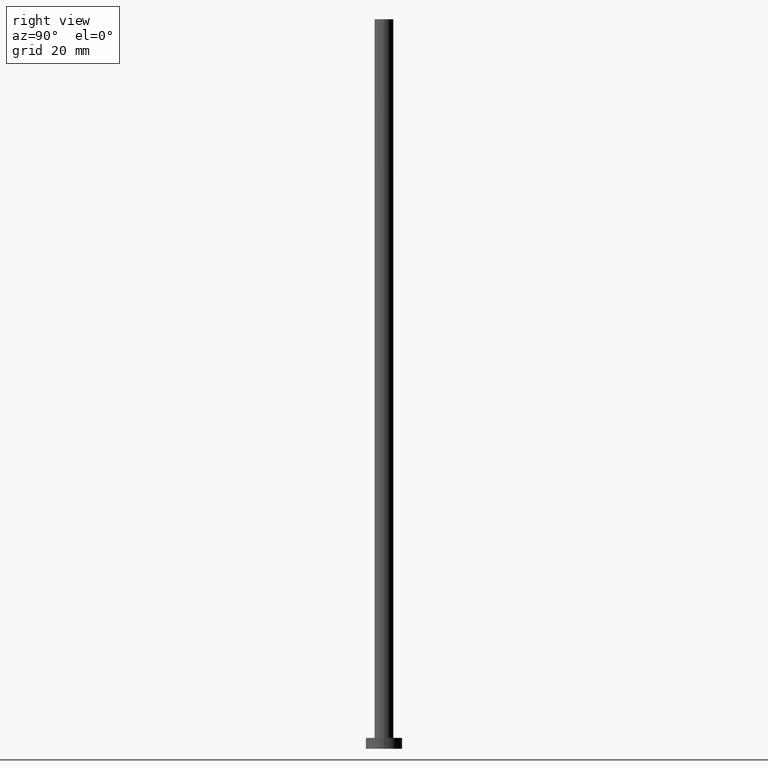
[diagram: clean part render]
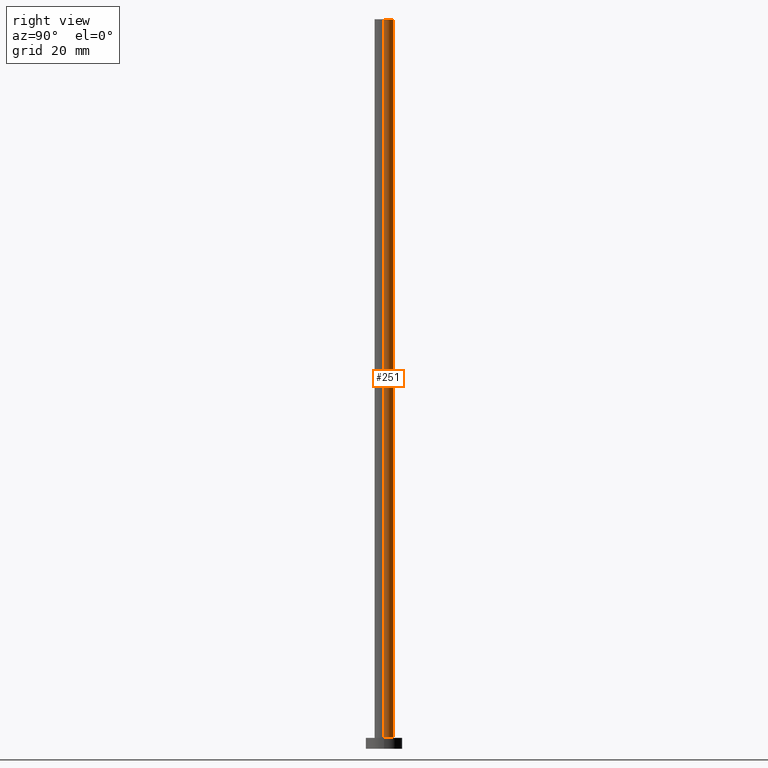
[diagram: same view with one face highlighted and labeled with its STEP entity id]
A machine part, right view. The second image highlights one B-rep face of the part: STEP entity #251.
In plain terms, the highlighted cylindrical surface (edge-blend (fillet) strip) has radius 2.6 mm, axis along (-0, -0, -1).
Its self-contained STEP definition (entity closure, byte-faithful):
#6 = VECTOR ( 'NONE', #127, 1000.000000000000000 ) ;
#7 = CARTESIAN_POINT ( 'NONE',  ( 0.000000000000000000, 0.000000000000000000, 200.0000000000000000 ) ) ;
#8 = DIRECTION ( 'NONE',  ( -0.000000000000000000, -0.000000000000000000, -1.000000000000000000 ) ) ;
#21 = VERTEX_POINT ( 'NONE', #204 ) ;
#25 = FACE_OUTER_BOUND ( 'NONE', #80, .T. ) ;
#30 = VERTEX_POINT ( 'NONE', #155 ) ;
#46 = CARTESIAN_POINT ( 'NONE',  ( 0.000000000000000000, 0.000000000000000000, 3.000000000000000000 ) ) ;
#57 = EDGE_CURVE ( 'NONE', #21, #30, #226, .T. ) ;
#63 = DIRECTION ( 'NONE',  ( -0.000000000000000000, -0.000000000000000000, -1.000000000000000000 ) ) ;
#65 = CYLINDRICAL_SURFACE ( 'NONE', #160, 2.600000000000000089 ) ;
#67 = CARTESIAN_POINT ( 'NONE',  ( 2.600000000000000089, 3.184081677783118191E-16, 3.000000000000000000 ) ) ;
#80 = EDGE_LOOP ( 'NONE', ( #118, #200, #120, #220 ) ) ;
#83 = LINE ( 'NONE', #229, #6 ) ;
#99 = VECTOR ( 'NONE', #63, 1000.000000000000000 ) ;
#104 = VERTEX_POINT ( 'NONE', #135 ) ;
#109 = DIRECTION ( 'NONE',  ( 0.000000000000000000, 0.000000000000000000, 1.000000000000000000 ) ) ;
#118 = ORIENTED_EDGE ( 'NONE', *, *, #57, .F. ) ;
#120 = ORIENTED_EDGE ( 'NONE', *, *, #198, .T. ) ;
#125 = DIRECTION ( 'NONE',  ( 1.000000000000000000, 0.000000000000000000, 0.000000000000000000 ) ) ;
#127 = DIRECTION ( 'NONE',  ( -0.000000000000000000, -0.000000000000000000, -1.000000000000000000 ) ) ;
#130 = AXIS2_PLACEMENT_3D ( 'NONE', #254, #240, #203 ) ;
#135 = CARTESIAN_POINT ( 'NONE',  ( -2.600000000000000089, 0.000000000000000000, 3.000000000000000000 ) ) ;
#155 = CARTESIAN_POINT ( 'NONE',  ( -2.600000000000000089, 0.000000000000000000, 200.0000000000000000 ) ) ;
#160 = AXIS2_PLACEMENT_3D ( 'NONE', #7, #8, #207 ) ;
#165 = LINE ( 'NONE', #188, #99 ) ;
#169 = EDGE_CURVE ( 'NONE', #21, #196, #83, .T. ) ;
#174 = AXIS2_PLACEMENT_3D ( 'NONE', #46, #109, #125 ) ;
#188 = CARTESIAN_POINT ( 'NONE',  ( -2.600000000000000089, 0.000000000000000000, 200.0000000000000000 ) ) ;
#196 = VERTEX_POINT ( 'NONE', #67 ) ;
#198 = EDGE_CURVE ( 'NONE', #196, #104, #246, .T. ) ;
#200 = ORIENTED_EDGE ( 'NONE', *, *, #169, .T. ) ;
#203 = DIRECTION ( 'NONE',  ( 1.000000000000000000, 0.000000000000000000, 0.000000000000000000 ) ) ;
#204 = CARTESIAN_POINT ( 'NONE',  ( 2.600000000000000089, 3.184081677783118191E-16, 200.0000000000000000 ) ) ;
#207 = DIRECTION ( 'NONE',  ( -1.000000000000000000, 0.000000000000000000, 0.000000000000000000 ) ) ;
#220 = ORIENTED_EDGE ( 'NONE', *, *, #237, .F. ) ;
#226 = CIRCLE ( 'NONE', #130, 2.600000000000000089 ) ;
#229 = CARTESIAN_POINT ( 'NONE',  ( 2.600000000000000089, 3.184081677783118191E-16, 200.0000000000000000 ) ) ;
#237 = EDGE_CURVE ( 'NONE', #30, #104, #165, .T. ) ;
#240 = DIRECTION ( 'NONE',  ( 0.000000000000000000, 0.000000000000000000, 1.000000000000000000 ) ) ;
#246 = CIRCLE ( 'NONE', #174, 2.600000000000000089 ) ;
#251 = ADVANCED_FACE ( 'NONE', ( #25 ), #65, .T. ) ;
#254 = CARTESIAN_POINT ( 'NONE',  ( 0.000000000000000000, 0.000000000000000000, 200.0000000000000000 ) ) ;